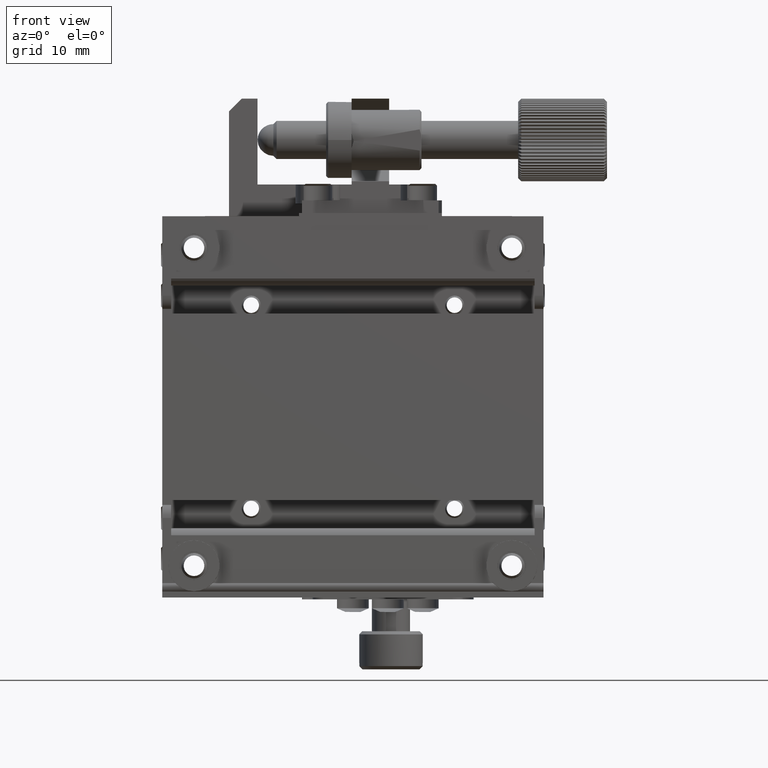
[diagram: clean part render]
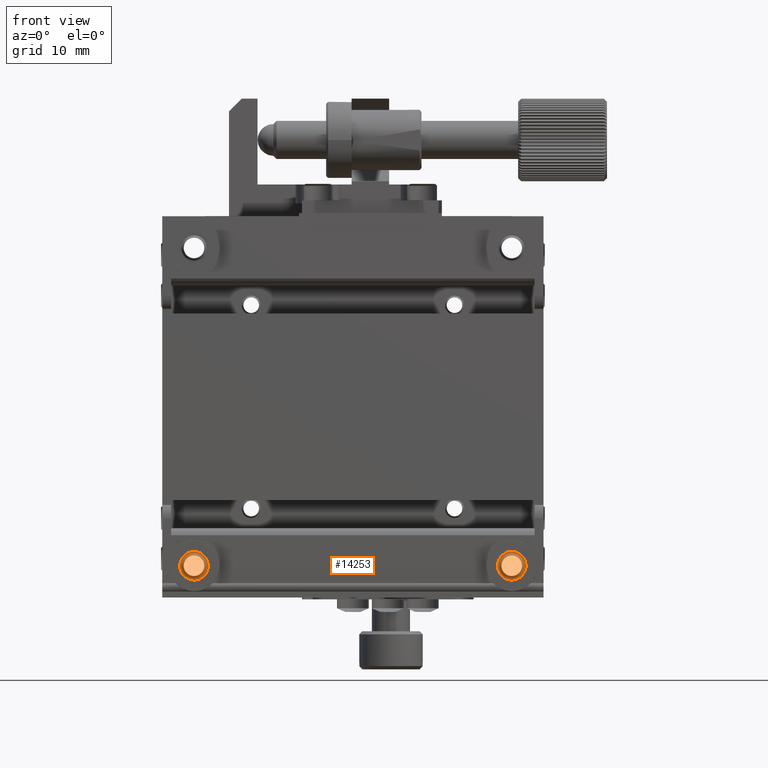
[diagram: same view with one face highlighted and labeled with its STEP entity id]
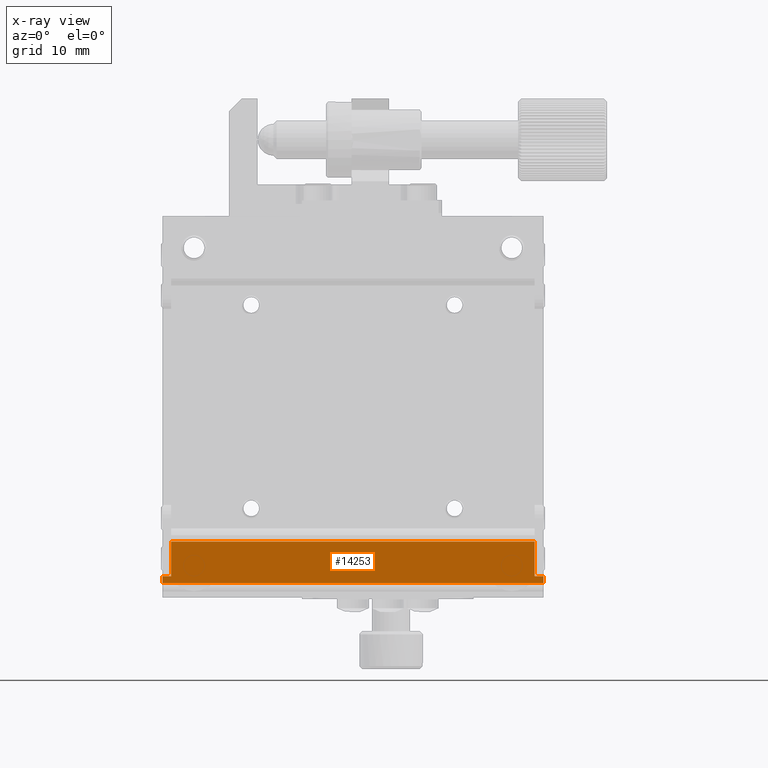
[diagram: x-ray of the same camera — body ghosted, the highlighted face saturated]
A machine part, front view. The second image highlights one B-rep face of the part: STEP entity #14253.
The next image is the same camera in x-ray: the body ghosted, the highlighted face saturated — about 0% of this face is hidden behind the body in this view.
In plain terms, the highlighted planar face has unit normal (0, 1, 0).
Its self-contained STEP definition (entity closure, byte-faithful):
#440 = EDGE_CURVE ( 'NONE', #7136, #7523, #12707, .T. ) ;
#783 = EDGE_CURVE ( 'NONE', #16406, #7492, #1350, .T. ) ;
#1151 = ORIENTED_EDGE ( 'NONE', *, *, #1159, .T. ) ;
#1159 = EDGE_CURVE ( 'NONE', #14421, #4790, #1932, .T. ) ;
#1350 = LINE ( 'NONE', #6754, #16760 ) ;
#1364 = PLANE ( 'NONE',  #11460 ) ;
#1590 = VECTOR ( 'NONE', #6588, 1000.000000000000000 ) ;
#1663 = CARTESIAN_POINT ( 'NONE',  ( 30.00000000000000000, 5.500000000000000000, -26.64999999999999503 ) ) ;
#1932 = LINE ( 'NONE', #1663, #12814 ) ;
#2197 = EDGE_CURVE ( 'NONE', #7136, #4790, #5368, .T. ) ;
#2255 = ORIENTED_EDGE ( 'NONE', *, *, #2451, .T. ) ;
#2284 = CARTESIAN_POINT ( 'NONE',  ( -28.60000000000000142, 5.500000000000000888, -21.19999999999999574 ) ) ;
#2451 = EDGE_CURVE ( 'NONE', #8556, #14421, #12727, .T. ) ;
#3197 = VECTOR ( 'NONE', #11669, 1000.000000000000000 ) ;
#3849 = EDGE_CURVE ( 'NONE', #15711, #16406, #6605, .T. ) ;
#3862 = DIRECTION ( 'NONE',  ( 0.000000000000000000, 0.000000000000000000, -1.000000000000000000 ) ) ;
#4197 = DIRECTION ( 'NONE',  ( 1.000000000000000000, 0.000000000000000000, -0.000000000000000000 ) ) ;
#4401 = ORIENTED_EDGE ( 'NONE', *, *, #440, .T. ) ;
#4685 = EDGE_CURVE ( 'NONE', #7523, #15711, #13399, .T. ) ;
#4739 = CARTESIAN_POINT ( 'NONE',  ( -30.00000000000000000, 5.500000000000000000, -26.64999999999999858 ) ) ;
#4790 = VERTEX_POINT ( 'NONE', #11229 ) ;
#5188 = VECTOR ( 'NONE', #3862, 1000.000000000000000 ) ;
#5368 = LINE ( 'NONE', #16195, #5188 ) ;
#5446 = EDGE_CURVE ( 'NONE', #8556, #7492, #13422, .T. ) ;
#5868 = CARTESIAN_POINT ( 'NONE',  ( 30.00000000000000000, 5.500000000000000000, -26.64999999999999503 ) ) ;
#6008 = CARTESIAN_POINT ( 'NONE',  ( 28.60000000000000142, 5.500000000000000888, -26.64999999999999503 ) ) ;
#6588 = DIRECTION ( 'NONE',  ( 1.000000000000000000, 0.000000000000000000, 0.000000000000000000 ) ) ;
#6605 = LINE ( 'NONE', #5868, #10363 ) ;
#6738 = CARTESIAN_POINT ( 'NONE',  ( 28.60000000000000142, 5.500000000000001776, -20.58500000000000085 ) ) ;
#6754 = CARTESIAN_POINT ( 'NONE',  ( 30.00000000000000000, 5.500000000000000000, -26.64999999999999858 ) ) ;
#6767 = CARTESIAN_POINT ( 'NONE',  ( 30.00000000000000000, 5.500000000000000000, -26.64999999999999858 ) ) ;
#7000 = VECTOR ( 'NONE', #9232, 1000.000000000000000 ) ;
#7136 = VERTEX_POINT ( 'NONE', #2284 ) ;
#7492 = VERTEX_POINT ( 'NONE', #14329 ) ;
#7523 = VERTEX_POINT ( 'NONE', #15658 ) ;
#7659 = ORIENTED_EDGE ( 'NONE', *, *, #2197, .F. ) ;
#7976 = VECTOR ( 'NONE', #12790, 1000.000000000000000 ) ;
#8448 = DIRECTION ( 'NONE',  ( 0.000000000000000000, 1.000000000000000000, 0.000000000000000000 ) ) ;
#8556 = VERTEX_POINT ( 'NONE', #14958 ) ;
#8629 = CARTESIAN_POINT ( 'NONE',  ( 30.00000000000000000, 5.500000000000000000, -21.19999999999999574 ) ) ;
#9067 = CARTESIAN_POINT ( 'NONE',  ( -30.00000000000000000, 5.500000000000000888, -26.64999999999999503 ) ) ;
#9166 = CARTESIAN_POINT ( 'NONE',  ( 30.00000000000000000, 5.500000000000003553, -27.73856217223385201 ) ) ;
#9232 = DIRECTION ( 'NONE',  ( 0.000000000000000000, 0.000000000000000000, -1.000000000000000000 ) ) ;
#9271 = EDGE_LOOP ( 'NONE', ( #7659, #4401, #16972, #13251, #12607, #14694, #2255, #1151 ) ) ;
#9521 = DIRECTION ( 'NONE',  ( 0.000000000000000000, -0.000000000000000000, 1.000000000000000000 ) ) ;
#10363 = VECTOR ( 'NONE', #4197, 1000.000000000000000 ) ;
#11229 = CARTESIAN_POINT ( 'NONE',  ( -28.60000000000000142, 5.500000000000000888, -26.64999999999999503 ) ) ;
#11460 = AXIS2_PLACEMENT_3D ( 'NONE', #6767, #8448, #9521 ) ;
#11669 = DIRECTION ( 'NONE',  ( 0.000000000000000000, -0.000000000000000000, 1.000000000000000000 ) ) ;
#12169 = DIRECTION ( 'NONE',  ( -0.000000000000000000, 0.000000000000000000, -1.000000000000000000 ) ) ;
#12434 = FACE_OUTER_BOUND ( 'NONE', #9271, .T. ) ;
#12607 = ORIENTED_EDGE ( 'NONE', *, *, #783, .T. ) ;
#12707 = LINE ( 'NONE', #8629, #7976 ) ;
#12727 = LINE ( 'NONE', #4739, #3197 ) ;
#12790 = DIRECTION ( 'NONE',  ( 1.000000000000000000, 0.000000000000000000, -0.000000000000000000 ) ) ;
#12814 = VECTOR ( 'NONE', #13823, 1000.000000000000000 ) ;
#13251 = ORIENTED_EDGE ( 'NONE', *, *, #3849, .T. ) ;
#13399 = LINE ( 'NONE', #6738, #7000 ) ;
#13422 = LINE ( 'NONE', #9166, #1590 ) ;
#13615 = CARTESIAN_POINT ( 'NONE',  ( 30.00000000000000000, 5.500000000000000888, -26.64999999999999503 ) ) ;
#13823 = DIRECTION ( 'NONE',  ( 1.000000000000000000, 0.000000000000000000, -0.000000000000000000 ) ) ;
#14253 = ADVANCED_FACE ( 'NONE', ( #12434 ), #1364, .T. ) ;
#14329 = CARTESIAN_POINT ( 'NONE',  ( 30.00000000000000000, 5.500000000000001776, -27.73856217223385201 ) ) ;
#14421 = VERTEX_POINT ( 'NONE', #9067 ) ;
#14694 = ORIENTED_EDGE ( 'NONE', *, *, #5446, .F. ) ;
#14958 = CARTESIAN_POINT ( 'NONE',  ( -30.00000000000000000, 5.500000000000001776, -27.73856217223385201 ) ) ;
#15658 = CARTESIAN_POINT ( 'NONE',  ( 28.60000000000000142, 5.500000000000000888, -21.19999999999999574 ) ) ;
#15711 = VERTEX_POINT ( 'NONE', #6008 ) ;
#16195 = CARTESIAN_POINT ( 'NONE',  ( -28.60000000000000142, 5.500000000000001776, -20.58500000000000085 ) ) ;
#16406 = VERTEX_POINT ( 'NONE', #13615 ) ;
#16760 = VECTOR ( 'NONE', #12169, 1000.000000000000000 ) ;
#16972 = ORIENTED_EDGE ( 'NONE', *, *, #4685, .T. ) ;